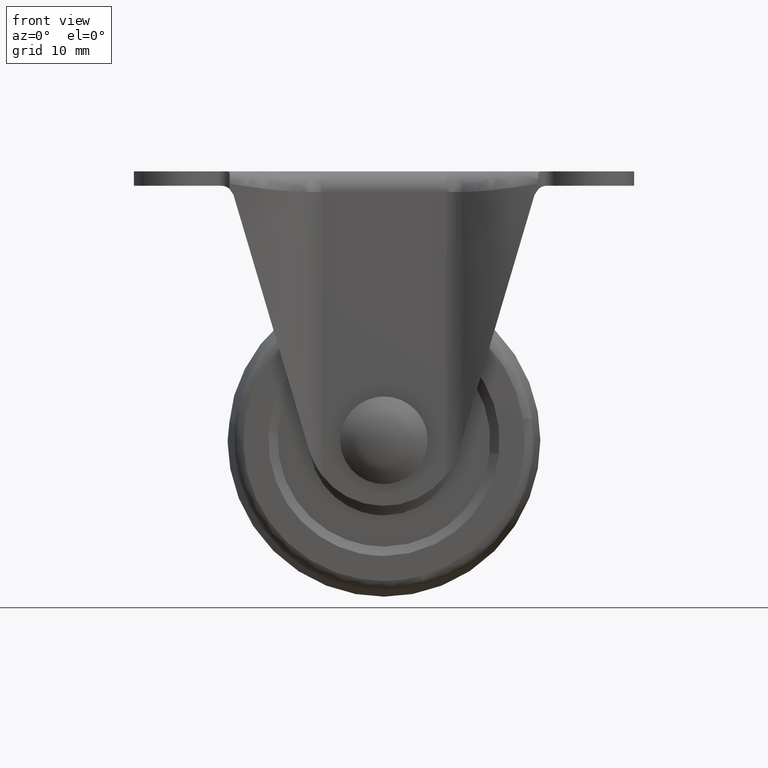
[diagram: clean part render]
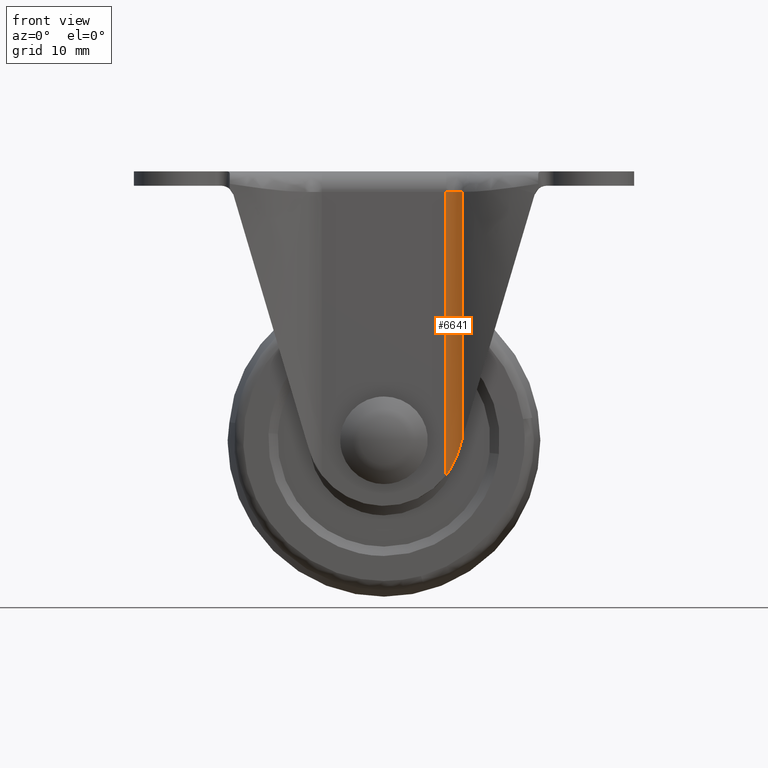
[diagram: same view with one face highlighted and labeled with its STEP entity id]
A machine part, front view. The second image highlights one B-rep face of the part: STEP entity #6641.
In plain terms, the highlighted face is a freeform B-spline surface patch.
Its self-contained STEP definition (entity closure, byte-faithful):
#3293=CARTESIAN_POINT('',(12.548576408855119,-18.977777843264601,-3.300000000000000));
#3294=VERTEX_POINT('',#3293);
#3366=CARTESIAN_POINT('',(9.928238000000000,-18.0,-3.300000000000000));
#3367=VERTEX_POINT('',#3366);
#3381=CARTESIAN_POINT('',(12.548576408855119,-18.977777843264601,-3.300000000000000));
#3382=CARTESIAN_POINT('',(11.420835837986553,-18.000000000000004,-3.300000000000001));
#3383=CARTESIAN_POINT('',(9.928238000000000,-18.0,-3.300000000000000));
#3391=(BOUNDED_CURVE()B_SPLINE_CURVE(2,(#3381,#3382,#3383),.UNSPECIFIED.,.F.,.U.)CURVE()GEOMETRIC_REPRESENTATION_ITEM()QUASI_UNIFORM_CURVE()RATIONAL_B_SPLINE_CURVE((1.0,0.936897949576393,1.0))REPRESENTATION_ITEM(''));
#3392=EDGE_CURVE('',#3294,#3367,#3391,.T.);
#5302=CARTESIAN_POINT('',(12.548576408855119,-18.977777843264601,-42.648375048808603));
#5303=VERTEX_POINT('',#5302);
#5317=CARTESIAN_POINT('',(11.985272165551759,-18.569459161917450,-44.550107441091953));
#5318=VERTEX_POINT('',#5317);
#5319=CARTESIAN_POINT('',(11.985272165551750,-18.569459161917351,-44.550107441091953));
#5320=CARTESIAN_POINT('',(12.284746688293213,-18.749031233514025,-43.539072272563445));
#5321=CARTESIAN_POINT('',(12.548576408855119,-18.977777843264601,-42.648375048808603));
#5329=(BOUNDED_CURVE()B_SPLINE_CURVE(2,(#5319,#5320,#5321),.UNSPECIFIED.,.F.,.U.)CURVE()GEOMETRIC_REPRESENTATION_ITEM()QUASI_UNIFORM_CURVE()RATIONAL_B_SPLINE_CURVE((1.0,0.996211293275456,1.0))REPRESENTATION_ITEM(''));
#5330=EDGE_CURVE('',#5318,#5303,#5329,.T.);
#5469=CARTESIAN_POINT('',(9.928238000000000,-18.0,-48.594741574811991));
#5470=VERTEX_POINT('',#5469);
#5552=CARTESIAN_POINT('',(9.928238000000000,-18.0,-48.594741574811991));
#5553=CARTESIAN_POINT('',(10.163329715021630,-18.0,-48.287417573489769));
#5554=CARTESIAN_POINT('',(10.381467758873740,-18.020467164677299,-47.972794079622012));
#5555=CARTESIAN_POINT('',(10.786277704213470,-18.087728707293738,-47.328581503374657));
#5556=CARTESIAN_POINT('',(10.972933973603160,-18.134642481331280,-46.998997912718202));
#5557=CARTESIAN_POINT('',(11.230067220325919,-18.216703119341080,-46.492851027311367));
#5558=CARTESIAN_POINT('',(11.311960262706929,-18.246022126160860,-46.322170072602631));
#5559=CARTESIAN_POINT('',(11.468131023542110,-18.307336103348842,-45.976736910373262));
#5560=CARTESIAN_POINT('',(11.542506539466590,-18.339380445443481,-45.801728207388422));
#5561=CARTESIAN_POINT('',(11.753247095402690,-18.437229229300570,-45.272628389508412));
#5562=CARTESIAN_POINT('',(11.877339282503970,-18.504740029134808,-44.914492162713742));
#5563=CARTESIAN_POINT('',(11.985272165551759,-18.569459161917351,-44.550107441091903));
#5564=B_SPLINE_CURVE_WITH_KNOTS('',3,(#5552,#5553,#5554,#5555,#5556,#5557,#5558,#5559,#5560,#5561,#5562,#5563),.UNSPECIFIED.,.F.,.U.,(4,2,2,2,2,4),(0.0,0.250000000000002,0.500000000000004,0.625000000000003,0.750000000000001,1.0),.UNSPECIFIED.);
#5565=EDGE_CURVE('',#5470,#5318,#5564,.T.);
#6599=CARTESIAN_POINT('',(9.928238000000000,-18.0,-48.594741574811991));
#6600=CARTESIAN_POINT('',(9.928238000000000,-18.0,-3.300000000000000));
#6601=QUASI_UNIFORM_CURVE('',1,(#6599,#6600),.UNSPECIFIED.,.F.,.U.);
#6602=EDGE_CURVE('',#5470,#3367,#6601,.T.);
#6616=CARTESIAN_POINT('',(9.818370429778572,-18.001509145063149,-49.727110114182302));
#6617=CARTESIAN_POINT('',(9.818370429778572,-18.001509145063149,-2.139322247145444));
#6618=CARTESIAN_POINT('',(11.454368423759858,-17.956556403889824,-49.727110114182288));
#6619=CARTESIAN_POINT('',(11.454368423759858,-17.956556403889824,-2.139322247145443));
#6620=CARTESIAN_POINT('',(12.652670279931570,-19.071268405594850,-49.727110114182302));
#6621=CARTESIAN_POINT('',(12.652670279931570,-19.071268405594850,-2.139322247145444));
#6629=(BOUNDED_SURFACE()B_SPLINE_SURFACE(1,2,((#6616,#6618,#6620),(#6617,#6619,#6621)),.UNSPECIFIED.,.F.,.F.,.U.)B_SPLINE_SURFACE_WITH_KNOTS((2,2),(3,3),(0.0,47.587787867036859),(0.0,3.146617400397881),.UNSPECIFIED.)GEOMETRIC_REPRESENTATION_ITEM()RATIONAL_B_SPLINE_SURFACE(((1.0,0.921570543729681,0.991469641295311),(1.0,0.921570543729681,0.991469641295311)))REPRESENTATION_ITEM('')SURFACE());
#6630=CARTESIAN_POINT('',(12.548576408855119,-18.977777843264601,-42.648375048808603));
#6631=CARTESIAN_POINT('',(12.548576408855119,-18.977777843264601,-3.300000000000000));
#6632=QUASI_UNIFORM_CURVE('',1,(#6630,#6631),.UNSPECIFIED.,.F.,.U.);
#6633=EDGE_CURVE('',#5303,#3294,#6632,.T.);
#6634=ORIENTED_EDGE('',*,*,#6633,.T.);
#6635=ORIENTED_EDGE('',*,*,#3392,.T.);
#6636=ORIENTED_EDGE('',*,*,#6602,.F.);
#6637=ORIENTED_EDGE('',*,*,#5565,.T.);
#6638=ORIENTED_EDGE('',*,*,#5330,.T.);
#6639=EDGE_LOOP('',(#6634,#6635,#6636,#6637,#6638));
#6640=FACE_OUTER_BOUND('',#6639,.T.);
#6641=ADVANCED_FACE('',(#6640),#6629,.F.);